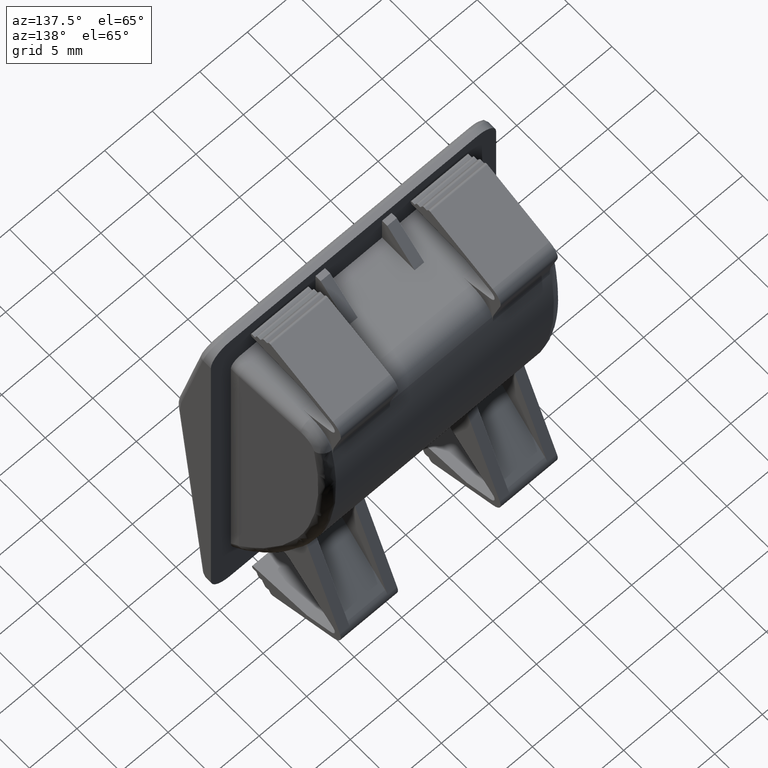
[diagram: clean part render]
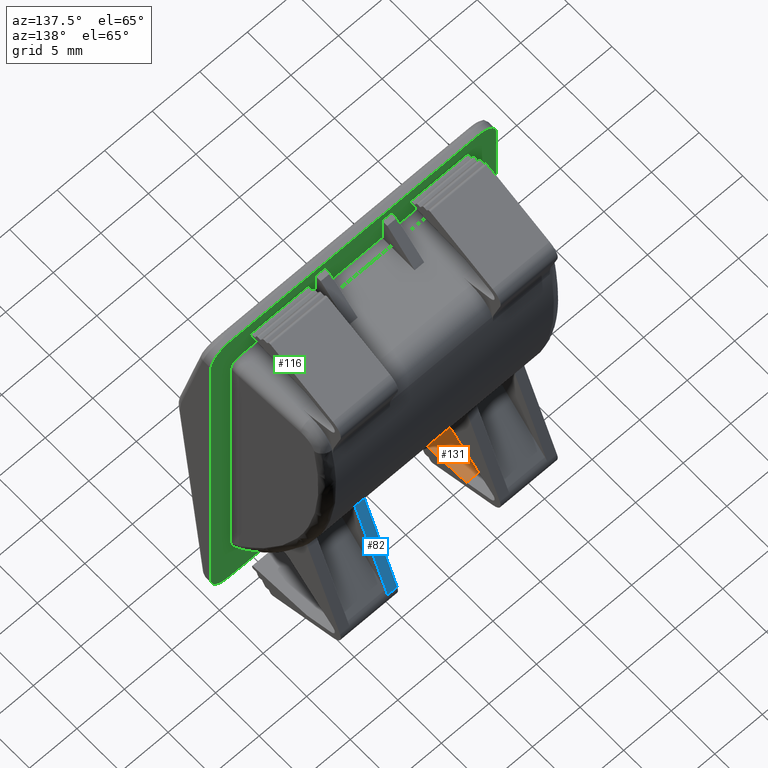
[diagram: same view with three faces highlighted in distinct colors, each labeled with its STEP entity id]
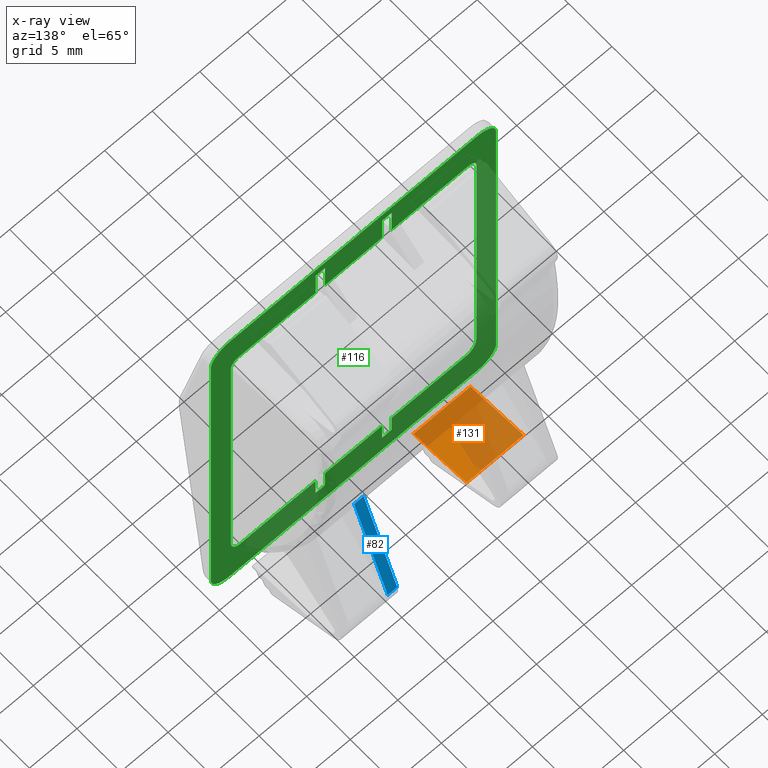
[diagram: x-ray of the same camera — body ghosted, the three highlighted faces saturated]
A machine part, auxiliary view with three faces highlighted in distinct colors.
The next image is the same camera in x-ray (body ghosted, the three faces saturated) — at least one of them is partly hidden behind the body in this view.
Their STEP definitions:

[orange] entity #131 — the highlighted planar face has unit normal (0, -0.1219, 0.9925).
#131=ADVANCED_FACE('',(#1160),#1159,.T.);
#1159=PLANE('',#2963);
#1160=FACE_OUTER_BOUND('',#2964,.T.);
#2960=CARTESIAN_POINT('',(-1.20000000000E+001,1.16969084995E+001,-2.65326054763E+001));
#2961=DIRECTION('',(0.00000000000E+000,-1.21869343404E-001,9.92546151642E-001));
#2962=DIRECTION('',(0.00000000000E+000,-9.92546151642E-001,-1.21869343404E-001));
#2963=AXIS2_PLACEMENT_3D('',#2960,#2961,#2962);
#2964=EDGE_LOOP('',(#4542,#4543,#4544,#4545));
#4542=ORIENTED_EDGE('',*,*,#5464,.F.);
#4543=ORIENTED_EDGE('',*,*,#5465,.F.);
#4544=ORIENTED_EDGE('',*,*,#5466,.T.);
#4545=ORIENTED_EDGE('',*,*,#5462,.T.);
#5462=EDGE_CURVE('',#7866,#7859,#7867,.T.);
#5464=EDGE_CURVE('',#7879,#7859,#7880,.T.);
#5465=EDGE_CURVE('',#7886,#7879,#7887,.T.);
#5466=EDGE_CURVE('',#7886,#7866,#7893,.T.);
#7859=VERTEX_POINT('',#10773);
#7866=VERTEX_POINT('',#10777);
#7867=LINE('',#10778,#10779);
#7879=VERTEX_POINT('',#10784);
#7880=LINE('',#10785,#10786);
#7886=VERTEX_POINT('',#10788);
#7887=LINE('',#10789,#10790);
#7893=LINE('',#10792,#10793);
#10773=CARTESIAN_POINT('',(-1.14000000000E+001,1.10858184423E+001,-2.66076379007E+001));
#10777=CARTESIAN_POINT('',(-5.40000000000E+000,1.10858184423E+001,-2.66076379007E+001));
#10778=CARTESIAN_POINT('',(-5.40000000000E+000,1.10858184423E+001,-2.66076379007E+001));
#10779=VECTOR('',#10780,6.00000000000E+000);
#10780=DIRECTION('',(-1.00000000000E+000,0.00000000000E+000,0.00000000000E+000));
#10784=CARTESIAN_POINT('',(-1.14000000000E+001,4.97491787019E+000,-2.73579621441E+001));
#10785=CARTESIAN_POINT('',(-1.14000000000E+001,4.97491787019E+000,-2.73579621441E+001));
#10786=VECTOR('',#10787,6.15679236881E+000);
#10787=DIRECTION('',(0.00000000000E+000,9.92546151642E-001,1.21869343404E-001));
#10788=CARTESIAN_POINT('',(-5.40000000000E+000,4.97491787019E+000,-2.73579621441E+001));
#10789=CARTESIAN_POINT('',(-5.40000000000E+000,4.97491787019E+000,-2.73579621441E+001));
#10790=VECTOR('',#10791,6.00000000000E+000);
#10791=DIRECTION('',(-1.00000000000E+000,0.00000000000E+000,0.00000000000E+000));
#10792=CARTESIAN_POINT('',(-5.40000000000E+000,4.97491787019E+000,-2.73579621441E+001));
#10793=VECTOR('',#10794,6.15679236881E+000);
#10794=DIRECTION('',(0.00000000000E+000,9.92546151642E-001,1.21869343404E-001));

[blue] entity #82 — the highlighted planar face has unit normal (-0, 0.9397, 0.342).
#82=ADVANCED_FACE('',(#669),#668,.T.);
#668=PLANE('',#2691);
#669=FACE_OUTER_BOUND('',#2692,.T.);
#2688=CARTESIAN_POINT('',(5.30000000000E+000,1.52967750808E+001,-2.51431794079E+001));
#2689=DIRECTION('',(-0.00000000000E+000,9.39692620786E-001,3.42020143325E-001));
#2690=DIRECTION('',(0.00000000000E+000,-3.42020143325E-001,9.39692620786E-001));
#2691=AXIS2_PLACEMENT_3D('',#2688,#2689,#2690);
#2692=EDGE_LOOP('',(#4290,#4291,#4292,#4293));
#4290=ORIENTED_EDGE('',*,*,#5329,.T.);
#4291=ORIENTED_EDGE('',*,*,#5330,.F.);
#4292=ORIENTED_EDGE('',*,*,#5310,.F.);
#4293=ORIENTED_EDGE('',*,*,#5331,.T.);
#5310=EDGE_CURVE('',#6845,#6852,#6853,.T.);
#5329=EDGE_CURVE('',#6984,#6985,#6986,.T.);
#5330=EDGE_CURVE('',#6852,#6985,#6992,.T.);
#5331=EDGE_CURVE('',#6845,#6984,#6998,.T.);
#6845=VERTEX_POINT('',#10171);
#6852=VERTEX_POINT('',#10176);
#6853=LINE('',#10177,#10178);
#6984=VERTEX_POINT('',#10261);
#6985=VERTEX_POINT('',#10262);
#6986=LINE('',#10263,#10264);
#6992=LINE('',#10266,#10267);
#6998=LINE('',#10269,#10270);
#10171=CARTESIAN_POINT('',(5.40000000000E+000,1.10607847645E+001,-1.35048916647E+001));
#10176=CARTESIAN_POINT('',(5.40000000000E+000,1.49116850520E+001,-2.40851532494E+001));
#10177=CARTESIAN_POINT('',(5.40000000000E+000,1.10607847645E+001,-1.35048916647E+001));
#10178=VECTOR('',#10179,1.12592792054E+001);
#10179=DIRECTION('',(0.00000000000E+000,3.42020143325E-001,-9.39692620786E-001));
#10261=CARTESIAN_POINT('',(6.40000000000E+000,1.10607847645E+001,-1.35048916647E+001));
#10262=CARTESIAN_POINT('',(6.40000000000E+000,1.49116850520E+001,-2.40851532494E+001));
#10263=CARTESIAN_POINT('',(6.40000000000E+000,1.10607847645E+001,-1.35048916647E+001));
#10264=VECTOR('',#10265,1.12592792054E+001);
#10265=DIRECTION('',(0.00000000000E+000,3.42020143325E-001,-9.39692620786E-001));
#10266=CARTESIAN_POINT('',(5.40000000000E+000,1.49116850520E+001,-2.40851532494E+001));
#10267=VECTOR('',#10268,1.00000000000E+000);
#10268=DIRECTION('',(1.00000000000E+000,0.00000000000E+000,0.00000000000E+000));
#10269=CARTESIAN_POINT('',(5.40000000000E+000,1.10607847645E+001,-1.35048916647E+001));
#10270=VECTOR('',#10271,1.00000000000E+000);
#10271=DIRECTION('',(1.00000000000E+000,0.00000000000E+000,0.00000000000E+000));

[green] entity #116 — the highlighted planar face has unit normal (0, 1, -0).
#116=ADVANCED_FACE('',(#1009,#1010),#1008,.T.);
#1008=PLANE('',#2861);
#1009=FACE_OUTER_BOUND('',#2862,.T.);
#1010=FACE_BOUND('',#2863,.T.);
#2858=CARTESIAN_POINT('',(-1.80000000000E+001,4.00361112088E+000,-3.25977237644E+001));
#2859=DIRECTION('',(0.00000000000E+000,1.00000000000E+000,-0.00000000000E+000));
#2860=DIRECTION('',(0.00000000000E+000,0.00000000000E+000,1.00000000000E+000));
#2861=AXIS2_PLACEMENT_3D('',#2858,#2859,#2860);
#2862=EDGE_LOOP('',(#4434,#4435,#4436,#4437,#4438,#4439,#4440,#4441));
#2863=EDGE_LOOP('',(#4442,#4443,#4444,#4445,#4446,#4447,#4448,#4449,#4450,#4451,#4452,#4453,#4454,#4455,#4456,#4457,#4458,#4459,#4460,#4461,#4462,#4463,#4464,#4465));
#4434=ORIENTED_EDGE('',*,*,#5397,.F.);
#4435=ORIENTED_EDGE('',*,*,#5398,.F.);
#4436=ORIENTED_EDGE('',*,*,#5399,.T.);
#4437=ORIENTED_EDGE('',*,*,#5400,.F.);
#4438=ORIENTED_EDGE('',*,*,#5401,.T.);
#4439=ORIENTED_EDGE('',*,*,#5402,.T.);
#4440=ORIENTED_EDGE('',*,*,#5403,.F.);
#4441=ORIENTED_EDGE('',*,*,#5404,.T.);
#4442=ORIENTED_EDGE('',*,*,#5405,.T.);
#4443=ORIENTED_EDGE('',*,*,#5380,.F.);
#4444=ORIENTED_EDGE('',*,*,#5383,.T.);
#4445=ORIENTED_EDGE('',*,*,#5378,.T.);
#4446=ORIENTED_EDGE('',*,*,#5406,.F.);
#4447=ORIENTED_EDGE('',*,*,#5141,.F.);
#4448=ORIENTED_EDGE('',*,*,#5407,.F.);
#4449=ORIENTED_EDGE('',*,*,#5408,.F.);
#4450=ORIENTED_EDGE('',*,*,#5409,.T.);
#4451=ORIENTED_EDGE('',*,*,#5363,.F.);
#4452=ORIENTED_EDGE('',*,*,#5373,.F.);
#4453=ORIENTED_EDGE('',*,*,#5371,.T.);
#4454=ORIENTED_EDGE('',*,*,#5395,.F.);
#4455=ORIENTED_EDGE('',*,*,#5410,.F.);
#4456=ORIENTED_EDGE('',*,*,#5411,.T.);
#4457=ORIENTED_EDGE('',*,*,#5412,.T.);
#4458=ORIENTED_EDGE('',*,*,#5386,.F.);
#4459=ORIENTED_EDGE('',*,*,#5413,.T.);
#4460=ORIENTED_EDGE('',*,*,#5414,.T.);
#4461=ORIENTED_EDGE('',*,*,#5415,.T.);
#4462=ORIENTED_EDGE('',*,*,#5416,.T.);
#4463=ORIENTED_EDGE('',*,*,#5417,.F.);
#4464=ORIENTED_EDGE('',*,*,#5418,.F.);
#4465=ORIENTED_EDGE('',*,*,#5419,.T.);
#5141=EDGE_CURVE('',#5698,#5705,#5706,.T.);
#5363=EDGE_CURVE('',#7193,#7200,#7201,.T.);
#5371=EDGE_CURVE('',#7228,#7249,#7256,.T.);
#5373=EDGE_CURVE('',#7228,#7193,#7268,.T.);
#5378=EDGE_CURVE('',#7281,#7295,#7302,.T.);
#5380=EDGE_CURVE('',#7309,#7316,#7317,.T.);
#5383=EDGE_CURVE('',#7309,#7281,#7336,.T.);
#5386=EDGE_CURVE('',#7354,#7355,#7356,.T.);
#5395=EDGE_CURVE('',#7410,#7249,#7418,.T.);
#5397=EDGE_CURVE('',#7430,#7431,#7432,.T.);
#5398=EDGE_CURVE('',#7438,#7430,#7439,.T.);
#5399=EDGE_CURVE('',#7438,#7445,#7446,.T.);
#5400=EDGE_CURVE('',#7452,#7445,#7453,.T.);
#5401=EDGE_CURVE('',#7452,#7459,#7460,.T.);
#5402=EDGE_CURVE('',#7459,#7466,#7467,.T.);
#5403=EDGE_CURVE('',#7473,#7466,#7474,.T.);
#5404=EDGE_CURVE('',#7473,#7431,#7480,.T.);
#5405=EDGE_CURVE('',#7486,#7316,#7487,.T.);
#5406=EDGE_CURVE('',#5705,#7295,#7493,.T.);
#5407=EDGE_CURVE('',#7499,#5698,#7500,.T.);
#5408=EDGE_CURVE('',#7506,#7499,#7507,.T.);
#5409=EDGE_CURVE('',#7506,#7200,#7513,.T.);
#5410=EDGE_CURVE('',#7519,#7410,#7520,.T.);
#5411=EDGE_CURVE('',#7519,#7526,#7527,.T.);
#5412=EDGE_CURVE('',#7526,#7355,#7533,.T.);
#5413=EDGE_CURVE('',#7354,#7539,#7540,.T.);
#5414=EDGE_CURVE('',#7539,#7546,#7547,.T.);
#5415=EDGE_CURVE('',#7546,#7553,#7554,.T.);
#5416=EDGE_CURVE('',#7553,#7560,#7561,.T.);
#5417=EDGE_CURVE('',#7567,#7560,#7568,.T.);
#5418=EDGE_CURVE('',#7574,#7567,#7575,.T.);
#5419=EDGE_CURVE('',#7574,#7486,#7581,.T.);
#5698=VERTEX_POINT('',#9394);
#5705=VERTEX_POINT('',#9399);
#5706=(BOUNDED_CURVE() B_SPLINE_CURVE(3,(#9400,#9401,#9402,#9403,#9404,#9405,#9406,#9407,#9408,#9409),.UNSPECIFIED.,.F.,.F.) B_SPLINE_CURVE_WITH_KNOTS((4,2,2,2,4),(5.27595548005E-017,4.85241042841E-004,9.70482085681E-004,1.45572312852E-003,1.94096417136E-003),.UNSPECIFIED.) CURVE() GEOMETRIC_REPRESENTATION_ITEM() RATIONAL_B_SPLINE_CURVE((1.00000000000E+000,1.00000000000E+000,1.00000000000E+000,1.00000000000E+000,1.00000000000E+000,1.00000000000E+000,1.00000000000E+000,1.00000000000E+000,1.00000000000E+000,1.00000000000E+000)) REPRESENTATION_ITEM('') );
#7193=VERTEX_POINT('',#10377);
#7200=VERTEX_POINT('',#10381);
#7201=LINE('',#10382,#10383);
#7228=VERTEX_POINT('',#10397);
#7249=VERTEX_POINT('',#10409);
#7256=LINE('',#10413,#10414);
#7268=LINE('',#10419,#10420);
#7281=VERTEX_POINT('',#10426);
#7295=VERTEX_POINT('',#10434);
#7302=LINE('',#10439,#10440);
#7309=VERTEX_POINT('',#10443);
#7316=VERTEX_POINT('',#10447);
#7317=LINE('',#10448,#10449);
#7336=LINE('',#10459,#10460);
#7354=VERTEX_POINT('',#10468);
#7355=VERTEX_POINT('',#10469);
#7356=LINE('',#10470,#10471);
#7410=VERTEX_POINT('',#10498);
#7418=LINE('',#10503,#10504);
#7430=VERTEX_POINT('',#10509);
#7431=VERTEX_POINT('',#10510);
#7432=CIRCLE('',#10514,2.00000000000E+000);
#7438=VERTEX_POINT('',#10515);
#7439=LINE('',#10516,#10517);
#7445=VERTEX_POINT('',#10519);
#7446=CIRCLE('',#10523,2.00000000000E+000);
#7452=VERTEX_POINT('',#10524);
#7453=LINE('',#10525,#10526);
#7459=VERTEX_POINT('',#10528);
#7460=CIRCLE('',#10532,2.00000000000E+000);
#7466=VERTEX_POINT('',#10533);
#7467=LINE('',#10534,#10535);
#7473=VERTEX_POINT('',#10537);
#7474=CIRCLE('',#10541,2.00000000000E+000);
#7480=LINE('',#10542,#10543);
#7486=VERTEX_POINT('',#10545);
#7487=LINE('',#10546,#10547);
#7493=LINE('',#10549,#10550);
#7499=VERTEX_POINT('',#10552);
#7500=LINE('',#10553,#10554);
#7506=VERTEX_POINT('',#10556);
#7507=CIRCLE('',#10560,1.00000000000E+000);
#7513=LINE('',#10561,#10562);
#7519=VERTEX_POINT('',#10564);
#7520=LINE('',#10565,#10566);
#7526=VERTEX_POINT('',#10568);
#7527=LINE('',#10569,#10570);
#7533=LINE('',#10572,#10573);
#7539=VERTEX_POINT('',#10575);
#7540=CIRCLE('',#10579,1.00000000000E+000);
#7546=VERTEX_POINT('',#10580);
#7547=LINE('',#10581,#10582);
#7553=VERTEX_POINT('',#10584);
#7554=(BOUNDED_CURVE() B_SPLINE_CURVE(3,(#10585,#10586,#10587,#10588,#10589,#10590,#10591,#10592,#10593,#10594),.UNSPECIFIED.,.F.,.F.) B_SPLINE_CURVE_WITH_KNOTS((4,2,2,2,4),(5.27595548005E-017,4.85241042841E-004,9.70482085681E-004,1.45572312852E-003,1.94096417136E-003),.UNSPECIFIED.) CURVE() GEOMETRIC_REPRESENTATION_ITEM() RATIONAL_B_SPLINE_CURVE((1.00000000000E+000,1.00000000000E+000,1.00000000000E+000,1.00000000000E+000,1.00000000000E+000,1.00000000000E+000,1.00000000000E+000,1.00000000000E+000,1.00000000000E+000,1.00000000000E+000)) REPRESENTATION_ITEM('') );
#7560=VERTEX_POINT('',#10595);
#7561=LINE('',#10596,#10597);
#7567=VERTEX_POINT('',#10599);
#7568=LINE('',#10600,#10601);
#7574=VERTEX_POINT('',#10603);
#7575=LINE('',#10604,#10605);
#7581=LINE('',#10607,#10608);
#9394=CARTESIAN_POINT('',(1.29000000000E+001,4.00361112088E+000,-2.24524623880E+001));
#9399=CARTESIAN_POINT('',(1.19000000000E+001,4.00361112088E+000,-2.39235991942E+001));
#9400=CARTESIAN_POINT('',(1.29000000000E+001,4.00361112088E+000,-2.24524623880E+001));
#9401=CARTESIAN_POINT('',(1.29000000000E+001,4.00361112088E+000,-2.26165413204E+001));
#9402=CARTESIAN_POINT('',(1.28824167055E+001,4.00361112088E+000,-2.27776237585E+001));
#9403=CARTESIAN_POINT('',(1.28090981942E+001,4.00361112088E+000,-2.30932868941E+001));
#9404=CARTESIAN_POINT('',(1.27523175280E+001,4.00361112088E+000,-2.32496272142E+001));
#9405=CARTESIAN_POINT('',(1.25929342557E+001,4.00361112088E+000,-2.35337389179E+001));
#9406=CARTESIAN_POINT('',(1.24888649874E+001,4.00361112088E+000,-2.36646578066E+001));
#9407=CARTESIAN_POINT('',(1.22254525774E+001,4.00361112088E+000,-2.38614756617E+001));
#9408=CARTESIAN_POINT('',(1.20657556955E+001,4.00361112088E+000,-2.39235991942E+001));
#9409=CARTESIAN_POINT('',(1.19000000000E+001,4.00361112088E+000,-2.39235991942E+001));
#10377=CARTESIAN_POINT('',(4.00000000000E+000,4.00361112088E+000,1.37013095356E+001));
#10381=CARTESIAN_POINT('',(4.00000000000E+000,4.00361112088E+000,1.06024605356E+001));
#10382=CARTESIAN_POINT('',(4.00000000000E+000,4.00361112088E+000,1.37013095356E+001));
#10383=VECTOR('',#10384,3.09884900000E+000);
#10384=DIRECTION('',(0.00000000000E+000,0.00000000000E+000,-1.00000000000E+000));
#10397=CARTESIAN_POINT('',(3.00000000000E+000,4.00361112088E+000,1.37013095356E+001));
#10409=CARTESIAN_POINT('',(3.00000000000E+000,4.00361112088E+000,1.06024605356E+001));
#10413=CARTESIAN_POINT('',(3.00000000000E+000,4.00361112088E+000,1.37013095356E+001));
#10414=VECTOR('',#10415,3.09884900000E+000);
#10415=DIRECTION('',(0.00000000000E+000,0.00000000000E+000,-1.00000000000E+000));
#10419=CARTESIAN_POINT('',(3.00000000000E+000,4.00361112088E+000,1.37013095356E+001));
#10420=VECTOR('',#10421,1.00000000000E+000);
#10421=DIRECTION('',(1.00000000000E+000,0.00000000000E+000,0.00000000000E+000));
#10426=CARTESIAN_POINT('',(4.00000000000E+000,4.00361112088E+000,-2.60977744644E+001));
#10434=CARTESIAN_POINT('',(4.00000000000E+000,4.00361112088E+000,-2.39235991942E+001));
#10439=CARTESIAN_POINT('',(4.00000000000E+000,4.00361112088E+000,-2.60977744644E+001));
#10440=VECTOR('',#10441,2.17417527011E+000);
#10441=DIRECTION('',(0.00000000000E+000,0.00000000000E+000,1.00000000000E+000));
#10443=CARTESIAN_POINT('',(3.00000000000E+000,4.00361112088E+000,-2.60977744644E+001));
#10447=CARTESIAN_POINT('',(3.00000000000E+000,4.00361112088E+000,-2.39235991942E+001));
#10448=CARTESIAN_POINT('',(3.00000000000E+000,4.00361112088E+000,-2.60977744644E+001));
#10449=VECTOR('',#10450,2.17417527011E+000);
#10450=DIRECTION('',(0.00000000000E+000,0.00000000000E+000,1.00000000000E+000));
#10459=CARTESIAN_POINT('',(3.00000000000E+000,4.00361112088E+000,-2.60977744644E+001));
#10460=VECTOR('',#10461,1.00000000000E+000);
#10461=DIRECTION('',(1.00000000000E+000,0.00000000000E+000,0.00000000000E+000));
#10468=CARTESIAN_POINT('',(-1.19000000000E+001,4.00361112088E+000,1.06024605356E+001));
#10469=CARTESIAN_POINT('',(-4.00000000000E+000,4.00361112088E+000,1.06024605356E+001));
#10470=CARTESIAN_POINT('',(-1.19000000000E+001,4.00361112088E+000,1.06024605356E+001));
#10471=VECTOR('',#10472,7.89999999996E+000);
#10472=DIRECTION('',(1.00000000000E+000,0.00000000000E+000,0.00000000000E+000));
#10498=CARTESIAN_POINT('',(-3.00000000000E+000,4.00361112088E+000,1.06024605356E+001));
#10503=CARTESIAN_POINT('',(-3.00000000000E+000,4.00361112088E+000,1.06024605356E+001));
#10504=VECTOR('',#10505,6.00000000000E+000);
#10505=DIRECTION('',(1.00000000000E+000,0.00000000000E+000,0.00000000000E+000));
#10509=CARTESIAN_POINT('',(1.30000000000E+001,4.00361112088E+000,-2.82977744644E+001));
#10510=CARTESIAN_POINT('',(1.50000000000E+001,4.00361112088E+000,-2.62977744644E+001));
#10511=CARTESIAN_POINT('',(1.30000000000E+001,4.00361112088E+000,-2.62977744644E+001));
#10512=DIRECTION('',(0.00000000000E+000,-1.00000000000E+000,0.00000000000E+000));
#10513=DIRECTION('',(-0.00000000000E+000,-0.00000000000E+000,-1.00000000000E+000));
#10514=AXIS2_PLACEMENT_3D('',#10511,#10512,#10513);
#10515=CARTESIAN_POINT('',(-1.30000000000E+001,4.00361112088E+000,-2.82977744644E+001));
#10516=CARTESIAN_POINT('',(-1.30000000000E+001,4.00361112088E+000,-2.82977744644E+001));
#10517=VECTOR('',#10518,2.60000000000E+001);
#10518=DIRECTION('',(1.00000000000E+000,0.00000000000E+000,0.00000000000E+000));
#10519=CARTESIAN_POINT('',(-1.50000000000E+001,4.00361112088E+000,-2.62977744644E+001));
#10520=CARTESIAN_POINT('',(-1.30000000000E+001,4.00361112088E+000,-2.62977744644E+001));
#10521=DIRECTION('',(0.00000000000E+000,1.00000000000E+000,-0.00000000000E+000));
#10522=DIRECTION('',(-0.00000000000E+000,-0.00000000000E+000,-1.00000000000E+000));
#10523=AXIS2_PLACEMENT_3D('',#10520,#10521,#10522);
#10524=CARTESIAN_POINT('',(-1.50000000000E+001,4.00361112088E+000,1.27017185356E+001));
#10525=CARTESIAN_POINT('',(-1.50000000000E+001,4.00361112088E+000,1.27017185356E+001));
#10526=VECTOR('',#10527,3.89994930000E+001);
#10527=DIRECTION('',(0.00000000000E+000,0.00000000000E+000,-1.00000000000E+000));
#10528=CARTESIAN_POINT('',(-1.30000000000E+001,4.00361112088E+000,1.47017185356E+001));
#10529=CARTESIAN_POINT('',(-1.30000000000E+001,4.00361112088E+000,1.27017185356E+001));
#10530=DIRECTION('',(0.00000000000E+000,1.00000000000E+000,-0.00000000000E+000));
#10531=DIRECTION('',(-0.00000000000E+000,-0.00000000000E+000,-1.00000000000E+000));
#10532=AXIS2_PLACEMENT_3D('',#10529,#10530,#10531);
#10533=CARTESIAN_POINT('',(1.30000000000E+001,4.00361112088E+000,1.47017185356E+001));
#10534=CARTESIAN_POINT('',(-1.30000000000E+001,4.00361112088E+000,1.47017185356E+001));
#10535=VECTOR('',#10536,2.60000000000E+001);
#10536=DIRECTION('',(1.00000000000E+000,0.00000000000E+000,0.00000000000E+000));
#10537=CARTESIAN_POINT('',(1.50000000000E+001,4.00361112088E+000,1.27017185356E+001));
#10538=CARTESIAN_POINT('',(1.30000000000E+001,4.00361112088E+000,1.27017185356E+001));
#10539=DIRECTION('',(0.00000000000E+000,-1.00000000000E+000,0.00000000000E+000));
#10540=DIRECTION('',(-0.00000000000E+000,-0.00000000000E+000,-1.00000000000E+000));
#10541=AXIS2_PLACEMENT_3D('',#10538,#10539,#10540);
#10542=CARTESIAN_POINT('',(1.50000000000E+001,4.00361112088E+000,1.27017185356E+001));
#10543=VECTOR('',#10544,3.89994930000E+001);
#10544=DIRECTION('',(0.00000000000E+000,0.00000000000E+000,-1.00000000000E+000));
#10545=CARTESIAN_POINT('',(-3.00000000000E+000,4.00361112088E+000,-2.39235991942E+001));
#10546=CARTESIAN_POINT('',(-3.00000000000E+000,4.00361112088E+000,-2.39235991942E+001));
#10547=VECTOR('',#10548,6.00000000000E+000);
#10548=DIRECTION('',(1.00000000000E+000,0.00000000000E+000,0.00000000000E+000));
#10549=CARTESIAN_POINT('',(1.19000000000E+001,4.00361112088E+000,-2.39235991942E+001));
#10550=VECTOR('',#10551,7.89999999996E+000);
#10551=DIRECTION('',(-1.00000000000E+000,0.00000000000E+000,0.00000000000E+000));
#10552=CARTESIAN_POINT('',(1.29000000000E+001,4.00361112088E+000,9.60246053564E+000));
#10553=CARTESIAN_POINT('',(1.29000000000E+001,4.00361112088E+000,9.60246053564E+000));
#10554=VECTOR('',#10555,3.20549229236E+001);
#10555=DIRECTION('',(0.00000000000E+000,0.00000000000E+000,-1.00000000000E+000));
#10556=CARTESIAN_POINT('',(1.19000000000E+001,4.00361112088E+000,1.06024605356E+001));
#10557=CARTESIAN_POINT('',(1.19000000000E+001,4.00361112088E+000,9.60246053564E+000));
#10558=DIRECTION('',(-0.00000000000E+000,1.00000000000E+000,0.00000000000E+000));
#10559=DIRECTION('',(-0.00000000000E+000,-0.00000000000E+000,-1.00000000000E+000));
#10560=AXIS2_PLACEMENT_3D('',#10557,#10558,#10559);
#10561=CARTESIAN_POINT('',(1.19000000000E+001,4.00361112088E+000,1.06024605356E+001));
#10562=VECTOR('',#10563,7.89999999996E+000);
#10563=DIRECTION('',(-1.00000000000E+000,0.00000000000E+000,0.00000000000E+000));
#10564=CARTESIAN_POINT('',(-3.00000000000E+000,4.00361112088E+000,1.37013095356E+001));
#10565=CARTESIAN_POINT('',(-3.00000000000E+000,4.00361112088E+000,1.37013095356E+001));
#10566=VECTOR('',#10567,3.09884900000E+000);
#10567=DIRECTION('',(0.00000000000E+000,0.00000000000E+000,-1.00000000000E+000));
#10568=CARTESIAN_POINT('',(-4.00000000000E+000,4.00361112088E+000,1.37013095356E+001));
#10569=CARTESIAN_POINT('',(-3.00000000000E+000,4.00361112088E+000,1.37013095356E+001));
#10570=VECTOR('',#10571,1.00000000000E+000);
#10571=DIRECTION('',(-1.00000000000E+000,0.00000000000E+000,0.00000000000E+000));
#10572=CARTESIAN_POINT('',(-4.00000000000E+000,4.00361112088E+000,1.37013095356E+001));
#10573=VECTOR('',#10574,3.09884900000E+000);
#10574=DIRECTION('',(0.00000000000E+000,0.00000000000E+000,-1.00000000000E+000));
#10575=CARTESIAN_POINT('',(-1.29000000000E+001,4.00361112088E+000,9.60246053564E+000));
#10576=CARTESIAN_POINT('',(-1.19000000000E+001,4.00361112088E+000,9.60246053564E+000));
#10577=DIRECTION('',(0.00000000000E+000,-1.00000000000E+000,0.00000000000E+000));
#10578=DIRECTION('',(-0.00000000000E+000,-0.00000000000E+000,-1.00000000000E+000));
#10579=AXIS2_PLACEMENT_3D('',#10576,#10577,#10578);
#10580=CARTESIAN_POINT('',(-1.29000000000E+001,4.00361112088E+000,-2.24524623880E+001));
#10581=CARTESIAN_POINT('',(-1.29000000000E+001,4.00361112088E+000,9.60246053564E+000));
#10582=VECTOR('',#10583,3.20549229236E+001);
#10583=DIRECTION('',(0.00000000000E+000,0.00000000000E+000,-1.00000000000E+000));
#10584=CARTESIAN_POINT('',(-1.19000000000E+001,4.00361112088E+000,-2.39235991942E+001));
#10585=CARTESIAN_POINT('',(-1.29000000000E+001,4.00361112088E+000,-2.24524623880E+001));
#10586=CARTESIAN_POINT('',(-1.29000000000E+001,4.00361112088E+000,-2.26165413204E+001));
#10587=CARTESIAN_POINT('',(-1.28824167055E+001,4.00361112088E+000,-2.27776237585E+001));
#10588=CARTESIAN_POINT('',(-1.28090981942E+001,4.00361112088E+000,-2.30932868941E+001));
#10589=CARTESIAN_POINT('',(-1.27523175280E+001,4.00361112088E+000,-2.32496272142E+001));
#10590=CARTESIAN_POINT('',(-1.25929342557E+001,4.00361112088E+000,-2.35337389179E+001));
#10591=CARTESIAN_POINT('',(-1.24888649874E+001,4.00361112088E+000,-2.36646578066E+001));
#10592=CARTESIAN_POINT('',(-1.22254525774E+001,4.00361112088E+000,-2.38614756617E+001));
#10593=CARTESIAN_POINT('',(-1.20657556955E+001,4.00361112088E+000,-2.39235991942E+001));
#10594=CARTESIAN_POINT('',(-1.19000000000E+001,4.00361112088E+000,-2.39235991942E+001));
#10595=CARTESIAN_POINT('',(-4.00000000000E+000,4.00361112088E+000,-2.39235991942E+001));
#10596=CARTESIAN_POINT('',(-1.19000000000E+001,4.00361112088E+000,-2.39235991942E+001));
#10597=VECTOR('',#10598,7.89999999996E+000);
#10598=DIRECTION('',(1.00000000000E+000,0.00000000000E+000,0.00000000000E+000));
#10599=CARTESIAN_POINT('',(-4.00000000000E+000,4.00361112088E+000,-2.60977744644E+001));
#10600=CARTESIAN_POINT('',(-4.00000000000E+000,4.00361112088E+000,-2.60977744644E+001));
#10601=VECTOR('',#10602,2.17417527011E+000);
#10602=DIRECTION('',(0.00000000000E+000,0.00000000000E+000,1.00000000000E+000));
#10603=CARTESIAN_POINT('',(-3.00000000000E+000,4.00361112088E+000,-2.60977744644E+001));
#10604=CARTESIAN_POINT('',(-3.00000000000E+000,4.00361112088E+000,-2.60977744644E+001));
#10605=VECTOR('',#10606,1.00000000000E+000);
#10606=DIRECTION('',(-1.00000000000E+000,0.00000000000E+000,0.00000000000E+000));
#10607=CARTESIAN_POINT('',(-3.00000000000E+000,4.00361112088E+000,-2.60977744644E+001));
#10608=VECTOR('',#10609,2.17417527011E+000);
#10609=DIRECTION('',(0.00000000000E+000,0.00000000000E+000,1.00000000000E+000));